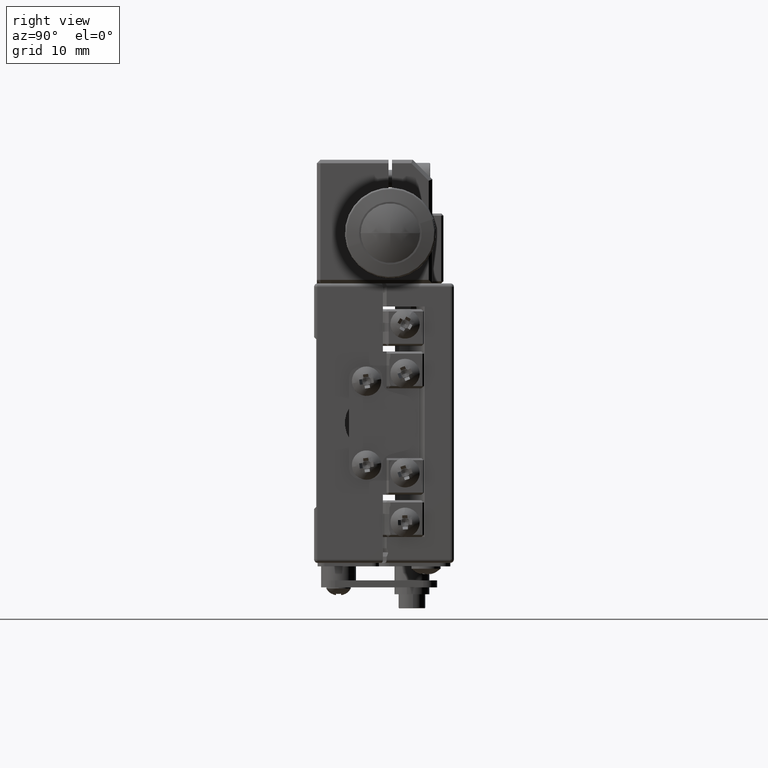
[diagram: clean part render]
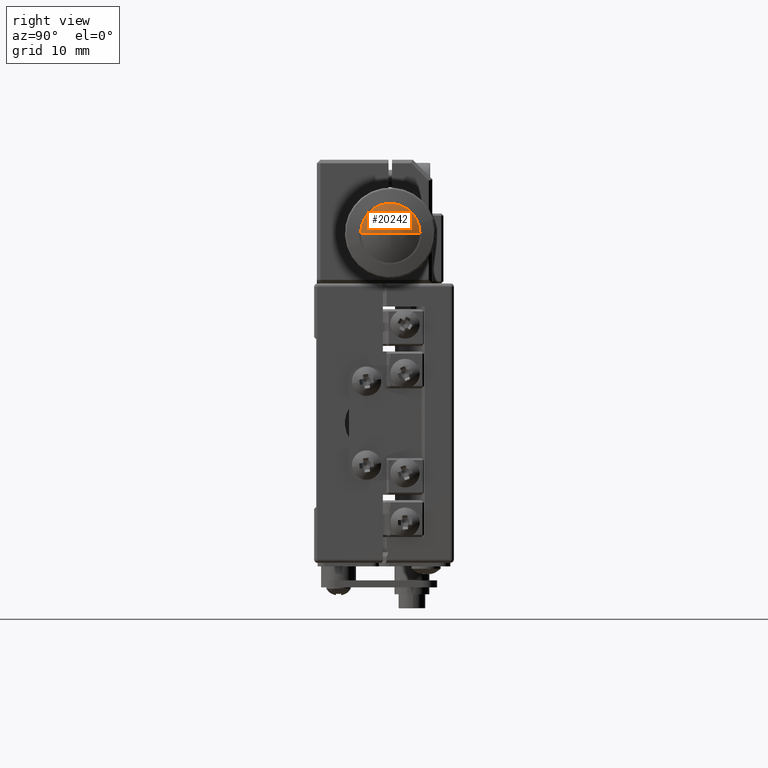
[diagram: same view with one face highlighted and labeled with its STEP entity id]
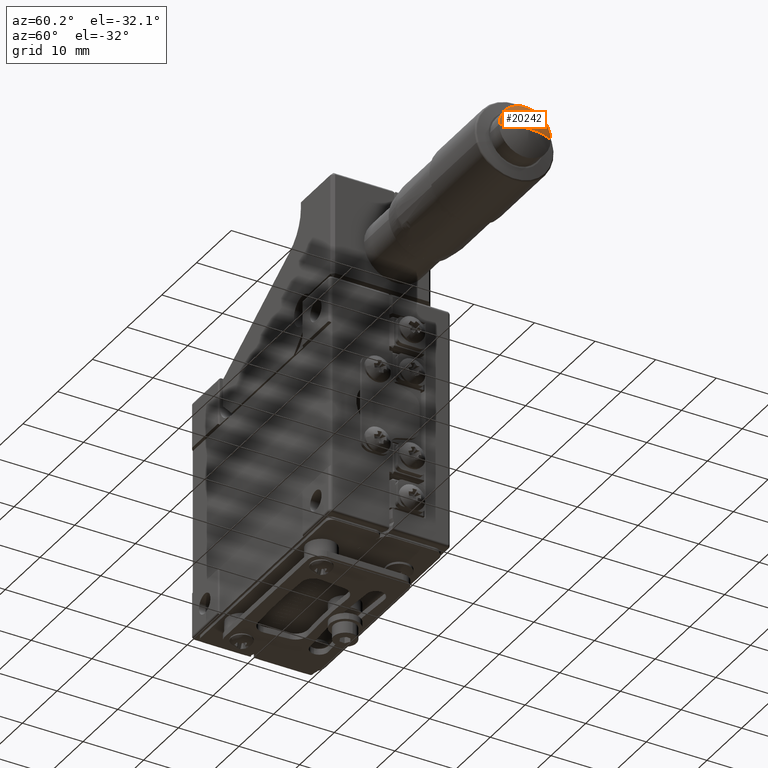
[diagram: same view with one face highlighted and labeled with its STEP entity id]
A machine part, right view. The second image highlights one B-rep face of the part: STEP entity #20242.
A second angle (auxiliary view) of the same face is appended — the face is thin or edge-on in the first view.
In plain terms, the highlighted spherical surface has radius 9 mm.
Its self-contained STEP definition (entity closure, byte-faithful):
#163 = CIRCLE ( 'NONE', #40563, 9.000000000000001776 ) ;
#933 = EDGE_LOOP ( 'NONE', ( #53269, #5239 ) ) ;
#5239 = ORIENTED_EDGE ( 'NONE', *, *, #46556, .F. ) ;
#5481 = DIRECTION ( 'NONE',  ( 0.000000000000000000, -1.000000000000000000, 0.000000000000000000 ) ) ;
#6056 = CARTESIAN_POINT ( 'NONE',  ( 57.46383680371999958, 1.346749654218516001, 27.20170592217050398 ) ) ;
#10964 = DIRECTION ( 'NONE',  ( 0.000000000000000000, 1.000000000000000000, 0.000000000000000000 ) ) ;
#12217 = CIRCLE ( 'NONE', #38825, 4.250000000000000000 ) ;
#13050 = DIRECTION ( 'NONE',  ( 1.000000000000000000, 0.000000000000000000, -6.106226608968590048E-15 ) ) ;
#20242 = ADVANCED_FACE ( 'NONE', ( #21908 ), #25965, .T. ) ;
#21795 = CARTESIAN_POINT ( 'NONE',  ( 57.46383680371999958, -7.153250345781480668, 27.20170592217050398 ) ) ;
#21908 = FACE_OUTER_BOUND ( 'NONE', #933, .T. ) ;
#25965 = SPHERICAL_SURFACE ( 'NONE', #29925, 9.000000000000000000 ) ;
#29925 = AXIS2_PLACEMENT_3D ( 'NONE', #33527, #13050, #5481 ) ;
#30556 = DIRECTION ( 'NONE',  ( -1.000000000000000000, 0.000000000000000000, 6.167905692361979378E-15 ) ) ;
#33527 = CARTESIAN_POINT ( 'NONE',  ( 49.53052097740859949, -2.903250345781485109, 27.20170592217055017 ) ) ;
#38825 = AXIS2_PLACEMENT_3D ( 'NONE', #39478, #47807, #10964 ) ;
#39478 = CARTESIAN_POINT ( 'NONE',  ( 57.46383680371999958, -2.903250345781485109, 27.20170592217055017 ) ) ;
#40563 = AXIS2_PLACEMENT_3D ( 'NONE', #47212, #42104, #30556 ) ;
#41357 = VERTEX_POINT ( 'NONE', #21795 ) ;
#42104 = DIRECTION ( 'NONE',  ( -6.167905692361980167E-15, -4.930380657631279446E-32, -1.000000000000000000 ) ) ;
#46556 = EDGE_CURVE ( 'NONE', #41357, #53147, #12217, .T. ) ;
#46682 = EDGE_CURVE ( 'NONE', #53147, #41357, #163, .T. ) ;
#47212 = CARTESIAN_POINT ( 'NONE',  ( 49.53052097740859949, -2.903250345781485109, 27.20170592217055017 ) ) ;
#47807 = DIRECTION ( 'NONE',  ( -1.000000000000000000, 0.000000000000000000, 6.106226608968590048E-15 ) ) ;
#53147 = VERTEX_POINT ( 'NONE', #6056 ) ;
#53269 = ORIENTED_EDGE ( 'NONE', *, *, #46682, .F. ) ;